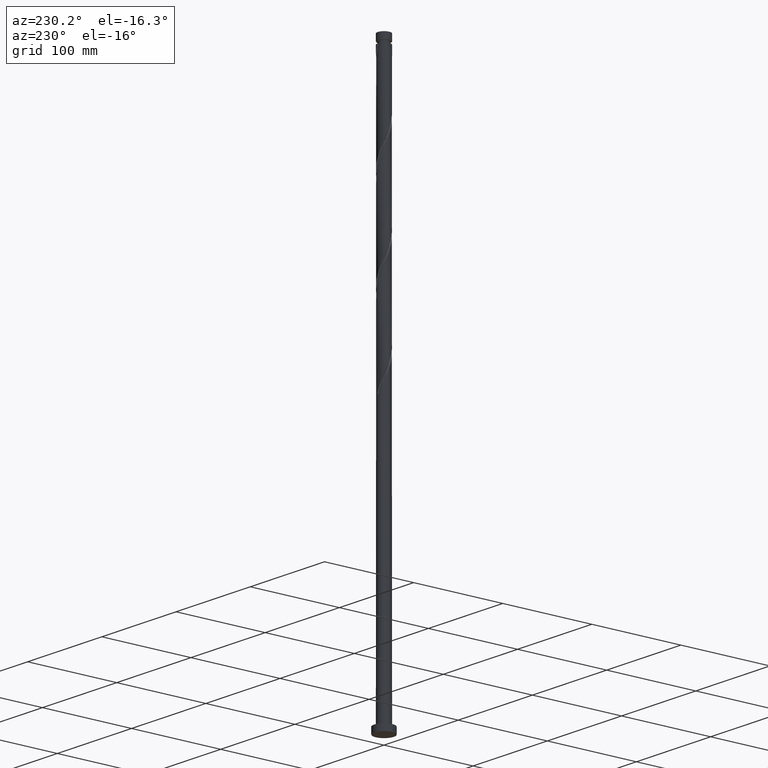
[diagram: clean part render]
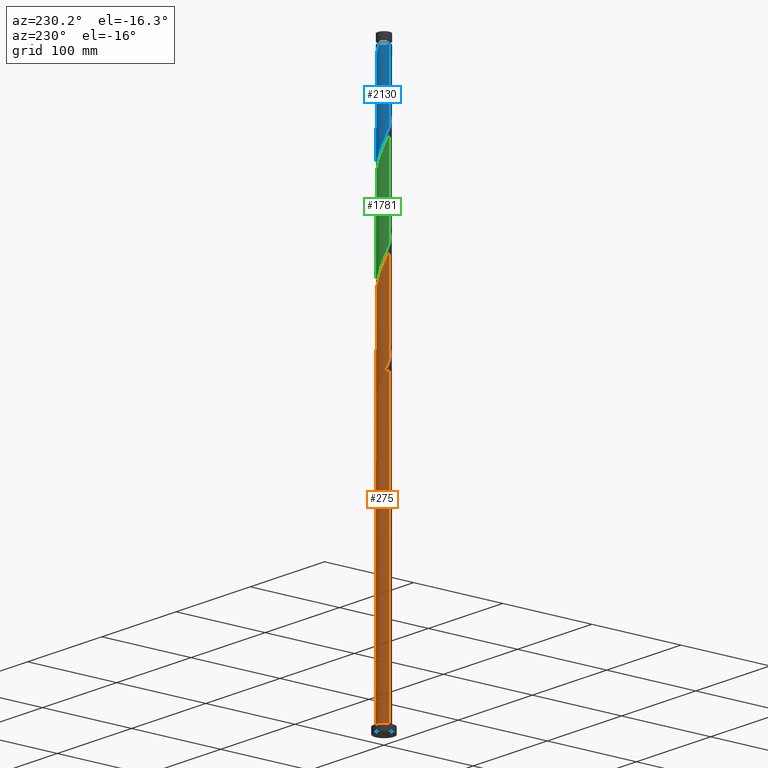
[diagram: same view with three faces highlighted in distinct colors, each labeled with its STEP entity id]
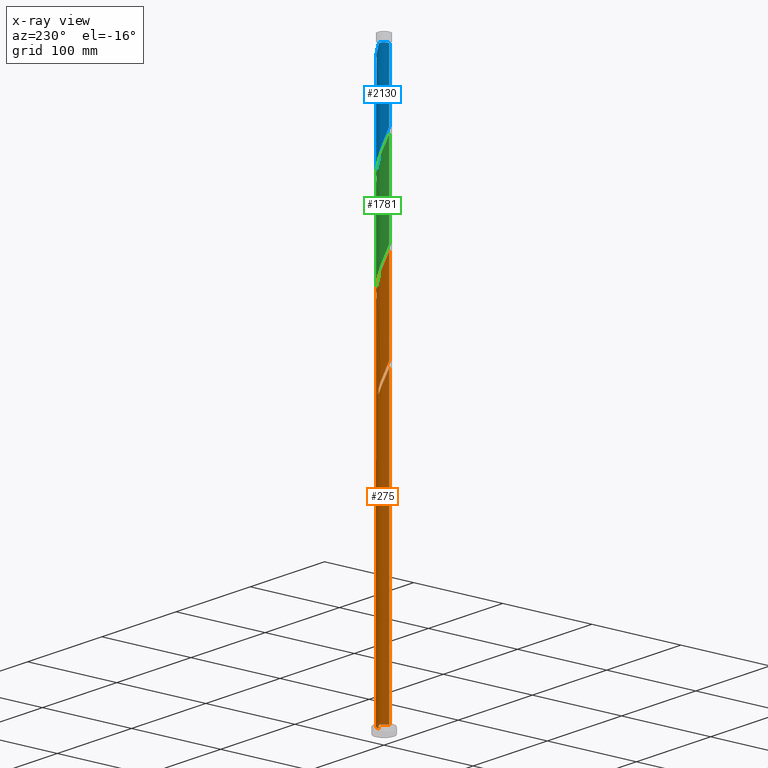
[diagram: x-ray of the same camera — body ghosted, the three highlighted faces saturated]
A machine part, auxiliary view with three faces highlighted in distinct colors.
The next image is the same camera in x-ray (body ghosted, the three faces saturated) — at least one of them is partly hidden behind the body in this view.
Their STEP definitions:

[orange] entity #275 — the highlighted cylindrical surface (edge-blend (fillet) strip) has radius 7 mm, axis along (-0, -0, -1).
#13 = CARTESIAN_POINT ( 'NONE',  ( 0.1087425470572643271, 6.999155310354209902, 307.9404512231919853 ) ) ;
#37 = CARTESIAN_POINT ( 'NONE',  ( 1.392982411949277077, 6.860000000000001208, 304.8522159290742479 ) ) ;
#50 = DIRECTION ( 'NONE',  ( -0.000000000000000000, -0.000000000000000000, -1.000000000000000000 ) ) ;
#99 = EDGE_CURVE ( 'NONE', #888, #887, #1138, .T. ) ;
#116 = DIRECTION ( 'NONE',  ( -1.000000000000000000, 0.000000000000000000, 0.000000000000000000 ) ) ;
#123 = ORIENTED_EDGE ( 'NONE', *, *, #995, .F. ) ;
#127 = CARTESIAN_POINT ( 'NONE',  ( 5.519914488767827088, 4.304711841307286235, 391.3228041643683923 ) ) ;
#142 = CARTESIAN_POINT ( 'NONE',  ( -4.148853266138338824, 5.675187890410485103, 318.7492747526037533 ) ) ;
#146 = CARTESIAN_POINT ( 'NONE',  ( -6.033786423897991469, 3.607514713233052728, 423.7492747526036965 ) ) ;
#153 = CARTESIAN_POINT ( 'NONE',  ( 1.818576125090523465, 6.790693771085500430, 402.1316276937801035 ) ) ;
#156 = LINE ( 'NONE', #1706, #1856 ) ;
#166 = ORIENTED_EDGE ( 'NONE', *, *, #259, .F. ) ;
#192 = LINE ( 'NONE', #1716, #1511 ) ;
#214 = CARTESIAN_POINT ( 'NONE',  ( 0.000000000000000000, 0.000000000000000000, 304.8522159290742479 ) ) ;
#259 = EDGE_CURVE ( 'NONE', #490, #888, #1557, .T. ) ;
#275 = ADVANCED_FACE ( 'NONE', ( #1957 ), #619, .T. ) ;
#286 = CARTESIAN_POINT ( 'NONE',  ( 7.000000000000010658, 6.602924597865742714E-15, 380.2540071543803037 ) ) ;
#298 = CARTESIAN_POINT ( 'NONE',  ( -7.000000000000000888, 0.000000000000000000, 630.0000000000000000 ) ) ;
#307 = CARTESIAN_POINT ( 'NONE',  ( -7.000000000000000888, 0.000000000000000000, 7.000000000000000000 ) ) ;
#317 = CARTESIAN_POINT ( 'NONE',  ( -5.121024193531049207, 4.816207244780715158, 321.8375100467213770 ) ) ;
#333 = CARTESIAN_POINT ( 'NONE',  ( -3.777035245235270455, 5.893556206251933105, 311.0286865173096089 ) ) ;
#340 = CARTESIAN_POINT ( 'NONE',  ( -6.979331644137406698, 0.5375219075929528190, 431.4698629878977272 ) ) ;
#351 = CARTESIAN_POINT ( 'NONE',  ( -2.426987120929417596, 6.565800295077725224, 314.1169218114271189 ) ) ;
#354 = CARTESIAN_POINT ( 'NONE',  ( -5.918804784004598751, 3.793216437833843102, 324.9257453408389438 ) ) ;
#371 = EDGE_CURVE ( 'NONE', #1617, #1381, #1761, .T. ) ;
#392 = CARTESIAN_POINT ( 'NONE',  ( -7.000000000000002665, 6.453537163524918519E-15, 334.4504247037682489 ) ) ;
#438 = AXIS2_PLACEMENT_3D ( 'NONE', #214, #1777, #1620 ) ;
#465 = EDGE_CURVE ( 'NONE', #2178, #887, #1366, .T. ) ;
#471 = CARTESIAN_POINT ( 'NONE',  ( 0.000000000000000000, 0.000000000000000000, 7.000000000000000000 ) ) ;
#475 = VECTOR ( 'NONE', #590, 1000.000000000000000 ) ;
#484 = CARTESIAN_POINT ( 'NONE',  ( 6.216916180193688746, 3.217134316196027299, 388.2345688702508255 ) ) ;
#490 = VERTEX_POINT ( 'NONE', #505 ) ;
#491 = CARTESIAN_POINT ( 'NONE',  ( -6.313857628450200821, 3.022449643527802099, 320.2933923996624799 ) ) ;
#505 = CARTESIAN_POINT ( 'NONE',  ( -1.392982411949274413, 6.860000000000009202, 304.8522159290742479 ) ) ;
#512 = CARTESIAN_POINT ( 'NONE',  ( -5.650978539377444321, 4.131154989527225929, 317.2051571055449131 ) ) ;
#520 = CARTESIAN_POINT ( 'NONE',  ( -6.216916180193678088, 3.217134316196025079, 326.4698629878977840 ) ) ;
#522 = CARTESIAN_POINT ( 'NONE',  ( -6.033786423897991469, 3.607514713233052728, 318.7492747526037533 ) ) ;
#526 = CARTESIAN_POINT ( 'NONE',  ( 0.7573097987289512112, 6.989078829442237684, 306.3963335761331450 ) ) ;
#543 = ORIENTED_EDGE ( 'NONE', *, *, #1022, .F. ) ;
#590 = DIRECTION ( 'NONE',  ( -0.000000000000000000, -0.000000000000000000, -1.000000000000000000 ) ) ;
#619 = CYLINDRICAL_SURFACE ( 'NONE', #1890, 7.000000000000000888 ) ;
#624 = VERTEX_POINT ( 'NONE', #392 ) ;
#633 = ORIENTED_EDGE ( 'NONE', *, *, #99, .F. ) ;
#639 = CARTESIAN_POINT ( 'NONE',  ( -2.028655025169602055, 6.730921170557770949, 411.3963335761331450 ) ) ;
#649 = CARTESIAN_POINT ( 'NONE',  ( -7.000000000000009770, 0.2691583152137695945, 432.1106014023204125 ) ) ;
#663 = CARTESIAN_POINT ( 'NONE',  ( -4.795662153747906942, 5.099178807132586755, 419.1169218114272326 ) ) ;
#668 = CARTESIAN_POINT ( 'NONE',  ( -6.979331644137406698, 0.5375219075929528190, 326.4698629878978977 ) ) ;
#672 = CARTESIAN_POINT ( 'NONE',  ( -0.7573097987289514332, 6.989078829442247454, 408.3080982820154077 ) ) ;
#675 = CARTESIAN_POINT ( 'NONE',  ( -6.889388918561528463, 1.398950086389861402, 331.1022159290743048 ) ) ;
#678 = CARTESIAN_POINT ( 'NONE',  ( -2.629785931500612683, 6.487235617308932056, 307.9404512231919853 ) ) ;
#687 = CARTESIAN_POINT ( 'NONE',  ( -7.000000000000002665, 6.453537163524918519E-15, 334.4504247037682489 ) ) ;
#690 = CARTESIAN_POINT ( 'NONE',  ( -1.392982411949274413, 6.860000000000008313, 304.8522159290742479 ) ) ;
#760 = EDGE_CURVE ( 'NONE', #1617, #2178, #192, .T. ) ;
#803 = CARTESIAN_POINT ( 'NONE',  ( -3.230916837831621979, 6.243550064060094940, 414.4845688702507687 ) ) ;
#814 = CARTESIAN_POINT ( 'NONE',  ( 3.592125691453329939, 6.008047354740226886, 397.4992747526036396 ) ) ;
#838 = CARTESIAN_POINT ( 'NONE',  ( -3.777035245235270455, 5.893556206251933105, 416.0286865173096089 ) ) ;
#844 = CARTESIAN_POINT ( 'NONE',  ( -4.795662153747906942, 5.099178807132586755, 314.1169218114272326 ) ) ;
#887 = VERTEX_POINT ( 'NONE', #307 ) ;
#888 = VERTEX_POINT ( 'NONE', #1379 ) ;
#968 = CARTESIAN_POINT ( 'NONE',  ( 1.179200414852474399, 6.899962781175843496, 403.6757453408388869 ) ) ;
#975 = CARTESIAN_POINT ( 'NONE',  ( 7.000000000000000888, 8.572527594031474176E-16, 7.000000000000000000 ) ) ;
#979 = CARTESIAN_POINT ( 'NONE',  ( -6.929522904244873160, 1.184252226071107028, 429.9257453408389438 ) ) ;
#992 = CARTESIAN_POINT ( 'NONE',  ( 7.000000000000007994, 0.3781398857548617931, 381.1579263863928873 ) ) ;
#995 = EDGE_CURVE ( 'NONE', #1381, #624, #156, .T. ) ;
#998 = CARTESIAN_POINT ( 'NONE',  ( -6.593928833002411061, 2.437384573822552802, 321.8375100467213201 ) ) ;
#1008 = CARTESIAN_POINT ( 'NONE',  ( -4.323153652638920263, 5.543562348443774823, 312.5728041643683923 ) ) ;
#1022 = EDGE_CURVE ( 'NONE', #624, #1898, #1415, .T. ) ;
#1030 = CARTESIAN_POINT ( 'NONE',  ( -5.519914488767820870, 4.304711841307279130, 323.3816276937801604 ) ) ;
#1138 = LINE ( 'NONE', #298, #475 ) ;
#1143 = DIRECTION ( 'NONE',  ( 0.000000000000000000, 0.000000000000000000, 1.000000000000000000 ) ) ;
#1149 = CARTESIAN_POINT ( 'NONE',  ( -1.179200414852472401, 6.899962781175837279, 311.0286865173096658 ) ) ;
#1162 = CARTESIAN_POINT ( 'NONE',  ( 5.918804784004604969, 3.793216437833845323, 389.7786865173094952 ) ) ;
#1173 = CARTESIAN_POINT ( 'NONE',  ( 3.035398116768321497, 6.340906819069966893, 399.0433923996624799 ) ) ;
#1181 = CARTESIAN_POINT ( 'NONE',  ( 4.148853266138341489, 5.675187890410493097, 395.9551571055448562 ) ) ;
#1188 = CARTESIAN_POINT ( 'NONE',  ( -6.761725868623641666, 1.810818399946829027, 323.3816276937801604 ) ) ;
#1192 = CARTESIAN_POINT ( 'NONE',  ( 6.959264651295739235, 0.7540792486375309522, 382.0580982820155782 ) ) ;
#1277 = ORIENTED_EDGE ( 'NONE', *, *, #465, .T. ) ;
#1317 = CARTESIAN_POINT ( 'NONE',  ( 6.889388918561536457, 1.398950086389860070, 383.6022159290743048 ) ) ;
#1340 = CARTESIAN_POINT ( 'NONE',  ( -6.593928833002411061, 2.437384573822552802, 426.8375100467213201 ) ) ;
#1357 = CARTESIAN_POINT ( 'NONE',  ( -6.702208247472144720, 2.020001140474033896, 329.5580982820154645 ) ) ;
#1359 = ORIENTED_EDGE ( 'NONE', *, *, #1585, .T. ) ;
#1360 = CARTESIAN_POINT ( 'NONE',  ( -7.000000000000011546, 0.2691583152137672075, 327.1106014023205830 ) ) ;
#1366 = CIRCLE ( 'NONE', #1961, 7.000000000000000888 ) ;
#1379 = CARTESIAN_POINT ( 'NONE',  ( -7.000000000000008882, 1.347474657754501805E-14, 327.7540071543801901 ) ) ;
#1381 = VERTEX_POINT ( 'NONE', #1597 ) ;
#1415 =( BOUNDED_CURVE ( )  B_SPLINE_CURVE ( 2, ( #687, #2176, #1526, #675, #1357, #2023, #520, #354, #1030, #317, #2043, #142, #1506, #2049, #351, #1551, #1149, #1891, #13, #526, #37 ),
 .UNSPECIFIED., .F., .T. ) 
 B_SPLINE_CURVE_WITH_KNOTS ( ( 3, 2, 2, 2, 2, 2, 2, 2, 2, 2, 3 ),
 ( 0.9295293573162906053, 0.9338235294117647189, 0.9411764705882352811, 0.9485294117647058432, 0.9558823529411765163, 0.9632352941176470784, 0.9705882352941176405, 0.9779411764705882026, 0.9852941176470588758, 0.9926470588235294379, 1.000000000000000000 ),
 .UNSPECIFIED. ) 
 CURVE ( )  GEOMETRIC_REPRESENTATION_ITEM ( )  RATIONAL_B_SPLINE_CURVE ( ( 0.9072066346053073715, 0.9068261157890744606, 0.9090909090909458090, 0.9052128875409768405, 0.9090909090909458090, 0.9052128875409768405, 0.9090909090909458090, 0.9052128875409768405, 0.9090909090909458090, 0.9052128875409768405, 0.9090909090909458090, 0.9052128875409768405, 0.9090909090909458090, 0.9052128875409768405, 0.9090909090909458090, 0.9052128875409768405, 0.9090909090909458090, 0.9052128875409768405, 0.9090909090909458090, 0.9052128875409768405, 0.9090909090909458090 ) ) 
 REPRESENTATION_ITEM ( '' )  );
#1502 = CARTESIAN_POINT ( 'NONE',  ( -4.323153652638920263, 5.543562348443774823, 417.5728041643683923 ) ) ;
#1506 = CARTESIAN_POINT ( 'NONE',  ( -3.592125691453326830, 6.008047354740224222, 317.2051571055449131 ) ) ;
#1511 = VECTOR ( 'NONE', #50, 1000.000000000000000 ) ;
#1515 = CARTESIAN_POINT ( 'NONE',  ( 7.000000000000010658, 6.602924597865742714E-15, 380.2540071543803037 ) ) ;
#1523 = CARTESIAN_POINT ( 'NONE',  ( -6.313857628450200821, 3.022449643527802099, 425.2933923996625367 ) ) ;
#1526 = CARTESIAN_POINT ( 'NONE',  ( -6.959264651295729465, 0.7540792486375311743, 332.6463335761331450 ) ) ;
#1551 = CARTESIAN_POINT ( 'NONE',  ( -1.818576125090521689, 6.790693771085493324, 312.5728041643684492 ) ) ;
#1557 =( BOUNDED_CURVE ( )  B_SPLINE_CURVE ( 2, ( #690, #1844, #678, #2168, #333, #1008, #844, #2004, #512, #522, #491, #998, #1188, #1988, #668, #1360, #2026 ),
 .UNSPECIFIED., .F., .T. ) 
 B_SPLINE_CURVE_WITH_KNOTS ( ( 3, 2, 2, 2, 2, 2, 2, 2, 3 ),
 ( 0.000000000000000000, 0.007352941176470562112, 0.01470588235294112422, 0.02205882352941179389, 0.02941176470588235947, 0.03676470588235292158, 0.04411764705882347676, 0.05147058823529415683, 0.05452935731629057758 ),
 .UNSPECIFIED. ) 
 CURVE ( )  GEOMETRIC_REPRESENTATION_ITEM ( )  RATIONAL_B_SPLINE_CURVE ( ( 0.9090909090909501389, 0.9052128875409812814, 0.9090909090909501389, 0.9052128875409812814, 0.9090909090909501389, 0.9052128875409812814, 0.9090909090909501389, 0.9052128875409812814, 0.9090909090909501389, 0.9052128875409812814, 0.9090909090909501389, 0.9052128875409812814, 0.9090909090909501389, 0.9052128875409812814, 0.9090909090909501389, 0.9074776808428524077, 0.9072066346053117014 ) ) 
 REPRESENTATION_ITEM ( '' )  );
#1569 = ORIENTED_EDGE ( 'NONE', *, *, #760, .T. ) ;
#1585 = EDGE_CURVE ( 'NONE', #490, #1898, #2030, .T. ) ;
#1597 = CARTESIAN_POINT ( 'NONE',  ( -7.000000000000010658, -6.095007321106839004E-15, 432.7540071543803037 ) ) ;
#1611 = DIRECTION ( 'NONE',  ( -0.000000000000000000, -0.000000000000000000, -1.000000000000000000 ) ) ;
#1617 = VERTEX_POINT ( 'NONE', #286 ) ;
#1620 = DIRECTION ( 'NONE',  ( -1.000000000000000000, 0.000000000000000000, 0.000000000000000000 ) ) ;
#1654 = CARTESIAN_POINT ( 'NONE',  ( 1.392982411949277077, 6.860000000000001208, 304.8522159290742479 ) ) ;
#1657 = CARTESIAN_POINT ( 'NONE',  ( -2.629785931500612683, 6.487235617308932056, 412.9404512231919284 ) ) ;
#1666 = DIRECTION ( 'NONE',  ( 1.000000000000000000, 0.000000000000000000, 0.000000000000000000 ) ) ;
#1676 = CARTESIAN_POINT ( 'NONE',  ( -5.268170654856898061, 4.654795265821401351, 420.6610394584860728 ) ) ;
#1685 = CARTESIAN_POINT ( 'NONE',  ( 4.634938729834698457, 5.245697567595604127, 394.4110394584861297 ) ) ;
#1694 = CARTESIAN_POINT ( 'NONE',  ( 5.121024193531053648, 4.816207244780720487, 392.8669218114273463 ) ) ;
#1697 = DIRECTION ( 'NONE',  ( -0.000000000000000000, -0.000000000000000000, -1.000000000000000000 ) ) ;
#1706 = CARTESIAN_POINT ( 'NONE',  ( -7.000000000000000888, 0.000000000000000000, 630.0000000000000000 ) ) ;
#1716 = CARTESIAN_POINT ( 'NONE',  ( 7.000000000000000888, 8.572527594031474176E-16, 630.0000000000000000 ) ) ;
#1760 = EDGE_LOOP ( 'NONE', ( #2139, #1569, #1277, #633, #166, #1359, #543, #123 ) ) ;
#1761 =( BOUNDED_CURVE ( )  B_SPLINE_CURVE ( 2, ( #1515, #992, #1192, #1317, #2010, #1870, #484, #1162, #127, #1694, #1685, #1181, #814, #1173, #1981, #153, #968, #1995, #2172, #672, #1860, #639, #1657, #803, #838, #1502, #663, #1676, #2159, #146, #1523, #1340, #1838, #979, #340, #649, #2151 ),
 .UNSPECIFIED., .F., .T. ) 
 B_SPLINE_CURVE_WITH_KNOTS ( ( 3, 2, 2, 2, 2, 2, 2, 2, 2, 2, 2, 2, 2, 2, 2, 2, 2, 2, 3 ),
 ( 0.1795293573162905498, 0.1838235294117647189, 0.1911764705882352811, 0.1985294117647058432, 0.2058823529411765163, 0.2132352941176470784, 0.2205882352941176405, 0.2279411764705882026, 0.2352941176470588758, 0.2426470588235294379, 0.2500000000000000000, 0.2573529411764705621, 0.2647058823529411242, 0.2720588235294117974, 0.2794117647058823595, 0.2867647058823529216, 0.2941176470588234837, 0.3014705882352941568, 0.3045293573162905498 ),
 .UNSPECIFIED. ) 
 CURVE ( )  GEOMETRIC_REPRESENTATION_ITEM ( )  RATIONAL_B_SPLINE_CURVE ( ( 0.9072066346053118124, 0.9068261157890789015, 0.9090909090909501389, 0.9052128875409812814, 0.9090909090909501389, 0.9052128875409812814, 0.9090909090909501389, 0.9052128875409812814, 0.9090909090909501389, 0.9052128875409812814, 0.9090909090909501389, 0.9052128875409812814, 0.9090909090909501389, 0.9052128875409812814, 0.9090909090909501389, 0.9052128875409812814, 0.9090909090909501389, 0.9052128875409812814, 0.9090909090909501389, 0.9052128875409812814, 0.9090909090909501389, 0.9052128875409812814, 0.9090909090909501389, 0.9052128875409812814, 0.9090909090909501389, 0.9052128875409812814, 0.9090909090909501389, 0.9052128875409812814, 0.9090909090909501389, 0.9052128875409812814, 0.9090909090909501389, 0.9052128875409812814, 0.9090909090909501389, 0.9052128875409812814, 0.9090909090909501389, 0.9074776808428525188, 0.9072066346053118124 ) ) 
 REPRESENTATION_ITEM ( '' )  );
#1777 = DIRECTION ( 'NONE',  ( 0.000000000000000000, -0.000000000000000000, -1.000000000000000000 ) ) ;
#1838 = CARTESIAN_POINT ( 'NONE',  ( -6.761725868623641666, 1.810818399946829027, 428.3816276937801035 ) ) ;
#1844 = CARTESIAN_POINT ( 'NONE',  ( -2.028655025169602055, 6.730921170557770949, 306.3963335761332019 ) ) ;
#1856 = VECTOR ( 'NONE', #1697, 1000.000000000000000 ) ;
#1860 = CARTESIAN_POINT ( 'NONE',  ( -1.392982411949274413, 6.860000000000008313, 409.8522159290743616 ) ) ;
#1870 = CARTESIAN_POINT ( 'NONE',  ( 6.515027576382769858, 2.641052194558211497, 386.6904512231919853 ) ) ;
#1890 = AXIS2_PLACEMENT_3D ( 'NONE', #1965, #1611, #116 ) ;
#1891 = CARTESIAN_POINT ( 'NONE',  ( -0.5398247046144222239, 7.009231791266180345, 309.4845688702507118 ) ) ;
#1898 = VERTEX_POINT ( 'NONE', #1654 ) ;
#1957 = FACE_OUTER_BOUND ( 'NONE', #1760, .T. ) ;
#1961 = AXIS2_PLACEMENT_3D ( 'NONE', #471, #1143, #1666 ) ;
#1965 = CARTESIAN_POINT ( 'NONE',  ( 0.000000000000000000, 0.000000000000000000, 630.0000000000000000 ) ) ;
#1981 = CARTESIAN_POINT ( 'NONE',  ( 2.426987120929425146, 6.565800295077732329, 400.5875100467213201 ) ) ;
#1988 = CARTESIAN_POINT ( 'NONE',  ( -6.929522904244873160, 1.184252226071107028, 324.9257453408391143 ) ) ;
#1995 = CARTESIAN_POINT ( 'NONE',  ( 0.5398247046144261097, 7.009231791266186562, 405.2198629878978409 ) ) ;
#2004 = CARTESIAN_POINT ( 'NONE',  ( -5.268170654856898061, 4.654795265821401351, 315.6610394584861297 ) ) ;
#2010 = CARTESIAN_POINT ( 'NONE',  ( 6.702208247472152713, 2.020001140474032564, 385.1463335761332019 ) ) ;
#2023 = CARTESIAN_POINT ( 'NONE',  ( -6.515027576382762753, 2.641052194558207944, 328.0139806349567380 ) ) ;
#2026 = CARTESIAN_POINT ( 'NONE',  ( -7.000000000000008882, 1.347474657754501805E-14, 327.7540071543801901 ) ) ;
#2030 = CIRCLE ( 'NONE', #438, 7.000000000000000888 ) ;
#2043 = CARTESIAN_POINT ( 'NONE',  ( -4.634938729834694016, 5.245697567595599686, 320.2933923996626504 ) ) ;
#2049 = CARTESIAN_POINT ( 'NONE',  ( -3.035398116768317056, 6.340906819069961564, 315.6610394584860160 ) ) ;
#2139 = ORIENTED_EDGE ( 'NONE', *, *, #371, .F. ) ;
#2151 = CARTESIAN_POINT ( 'NONE',  ( -7.000000000000010658, -6.095007321106839004E-15, 432.7540071543803037 ) ) ;
#2159 = CARTESIAN_POINT ( 'NONE',  ( -5.650978539377444321, 4.131154989527225929, 422.2051571055449699 ) ) ;
#2168 = CARTESIAN_POINT ( 'NONE',  ( -3.230916837831621979, 6.243550064060094940, 309.4845688702508255 ) ) ;
#2172 = CARTESIAN_POINT ( 'NONE',  ( -0.1087425470572654096, 6.999155310354216120, 406.7639806349566811 ) ) ;
#2176 = CARTESIAN_POINT ( 'NONE',  ( -7.000000000000000888, 0.3781398857548654568, 333.5465054717556654 ) ) ;
#2178 = VERTEX_POINT ( 'NONE', #975 ) ;

[blue] entity #2130 — the highlighted cylindrical surface (edge-blend (fillet) strip) has radius 7 mm, axis along (-0, -0, -1).
#5 = CARTESIAN_POINT ( 'NONE',  ( -7.000000000000002665, -1.711979997546194062E-14, 544.4504247037683626 ) ) ;
#32 =( BOUNDED_CURVE ( )  B_SPLINE_CURVE ( 2, ( #1346, #1371, #2017, #1866, #1021, #167, #176, #1080, #1378, #882, #1635, #1643, #1123, #1273, #1623, #585, #756, #1947, #2133, #779, #424 ),
 .UNSPECIFIED., .F., .T. ) 
 B_SPLINE_CURVE_WITH_KNOTS ( ( 3, 2, 2, 2, 2, 2, 2, 2, 2, 2, 3 ),
 ( 0.6795293573162902723, 0.6838235294117647189, 0.6911764705882352811, 0.6985294117647058432, 0.7058823529411764053, 0.7132352941176470784, 0.7205882352941176405, 0.7279411764705883137, 0.7352941176470588758, 0.7426470588235294379, 0.7500000000000000000 ),
 .UNSPECIFIED. ) 
 CURVE ( )  GEOMETRIC_REPRESENTATION_ITEM ( )  RATIONAL_B_SPLINE_CURVE ( ( 0.9072066346053117014, 0.9068261157890786794, 0.9090909090909501389, 0.9052128875409812814, 0.9090909090909501389, 0.9052128875409812814, 0.9090909090909501389, 0.9052128875409812814, 0.9090909090909501389, 0.9052128875409812814, 0.9090909090909501389, 0.9052128875409812814, 0.9090909090909501389, 0.9052128875409812814, 0.9090909090909501389, 0.9052128875409812814, 0.9090909090909501389, 0.9052128875409812814, 0.9090909090909501389, 0.9052128875409812814, 0.9090909090909501389 ) ) 
 REPRESENTATION_ITEM ( '' )  );
#72 = EDGE_CURVE ( 'NONE', #1234, #974, #1798, .T. ) ;
#91 = CARTESIAN_POINT ( 'NONE',  ( 0.7573097987289512112, 6.989078829442237684, 516.3963335761329745 ) ) ;
#112 = ORIENTED_EDGE ( 'NONE', *, *, #561, .T. ) ;
#167 = CARTESIAN_POINT ( 'NONE',  ( 6.515027576382769858, 2.641052194558211497, 596.6904512231920990 ) ) ;
#176 = CARTESIAN_POINT ( 'NONE',  ( 6.216916180193688746, 3.217134316196027299, 598.2345688702508824 ) ) ;
#181 = CARTESIAN_POINT ( 'NONE',  ( -0.5398247046144222239, 7.009231791266180345, 519.4845688702508824 ) ) ;
#190 = CARTESIAN_POINT ( 'NONE',  ( -6.889388918561528463, 1.398950086389861402, 541.1022159290743048 ) ) ;
#221 = ORIENTED_EDGE ( 'NONE', *, *, #1555, .T. ) ;
#251 = CARTESIAN_POINT ( 'NONE',  ( 4.795662153747906054, 5.099178807132579649, 505.5875100467214338 ) ) ;
#254 = AXIS2_PLACEMENT_3D ( 'NONE', #1210, #1911, #695 ) ;
#261 = EDGE_CURVE ( 'NONE', #1353, #416, #32, .T. ) ;
#336 = VECTOR ( 'NONE', #421, 1000.000000000000000 ) ;
#362 = CARTESIAN_POINT ( 'NONE',  ( -1.179200414852472401, 6.899962781175837279, 521.0286865173095521 ) ) ;
#372 = CARTESIAN_POINT ( 'NONE',  ( -7.000000000000004441, 0.3781398857548243231, 543.5465054717556086 ) ) ;
#396 = ORIENTED_EDGE ( 'NONE', *, *, #261, .F. ) ;
#409 = CARTESIAN_POINT ( 'NONE',  ( 6.033786423897987028, 3.607514713233050063, 500.9551571055449699 ) ) ;
#416 = VERTEX_POINT ( 'NONE', #1016 ) ;
#421 = DIRECTION ( 'NONE',  ( -0.000000000000000000, -0.000000000000000000, -1.000000000000000000 ) ) ;
#424 = CARTESIAN_POINT ( 'NONE',  ( -1.392982411949274191, 6.860000000000008313, 619.8522159290741911 ) ) ;
#468 = DIRECTION ( 'NONE',  ( -0.000000000000000000, -0.000000000000000000, -1.000000000000000000 ) ) ;
#561 = EDGE_CURVE ( 'NONE', #1234, #416, #1652, .T. ) ;
#569 = CARTESIAN_POINT ( 'NONE',  ( 1.392982411949277299, 6.860000000000002096, 514.8522159290744185 ) ) ;
#582 = CARTESIAN_POINT ( 'NONE',  ( 6.313857628450196380, 3.022449643527796326, 499.4110394584860160 ) ) ;
#585 = CARTESIAN_POINT ( 'NONE',  ( 1.818576125090523465, 6.790693771085500430, 612.1316276937802741 ) ) ;
#606 = CARTESIAN_POINT ( 'NONE',  ( 7.000000000000000888, -6.752312032206627651E-15, 491.9504247037683626 ) ) ;
#625 = DIRECTION ( 'NONE',  ( -0.000000000000000000, -0.000000000000000000, -1.000000000000000000 ) ) ;
#634 = FACE_OUTER_BOUND ( 'NONE', #866, .T. ) ;
#642 = CARTESIAN_POINT ( 'NONE',  ( -4.148853266138338824, 5.675187890410485103, 528.7492747526036965 ) ) ;
#695 = DIRECTION ( 'NONE',  ( -1.000000000000000000, 0.000000000000000000, 0.000000000000000000 ) ) ;
#696 = CARTESIAN_POINT ( 'NONE',  ( -6.515027576382762753, 2.641052194558207944, 538.0139806349567380 ) ) ;
#733 = CARTESIAN_POINT ( 'NONE',  ( 6.593928833002403067, 2.437384573822548806, 497.8669218114272894 ) ) ;
#756 = CARTESIAN_POINT ( 'NONE',  ( 1.179200414852474399, 6.899962781175843496, 613.6757453408390575 ) ) ;
#763 = CARTESIAN_POINT ( 'NONE',  ( 6.929522904244866943, 1.184252226071101921, 494.7786865173095521 ) ) ;
#779 = CARTESIAN_POINT ( 'NONE',  ( -0.7573097987289514332, 6.989078829442247454, 618.3080982820155214 ) ) ;
#785 = CARTESIAN_POINT ( 'NONE',  ( -7.000000000000000888, 0.000000000000000000, 630.0000000000000000 ) ) ;
#800 = DIRECTION ( 'NONE',  ( -1.000000000000000000, 0.000000000000000000, 0.000000000000000000 ) ) ;
#807 = CARTESIAN_POINT ( 'NONE',  ( -6.959264651295729465, 0.7540792486375311743, 542.6463335761332019 ) ) ;
#809 = VERTEX_POINT ( 'NONE', #1622 ) ;
#819 = CARTESIAN_POINT ( 'NONE',  ( -3.035398116768317056, 6.340906819069961564, 525.6610394584861297 ) ) ;
#854 = ORIENTED_EDGE ( 'NONE', *, *, #72, .F. ) ;
#866 = EDGE_LOOP ( 'NONE', ( #396, #221, #1152, #854, #112 ) ) ;
#882 = CARTESIAN_POINT ( 'NONE',  ( 5.121024193531053648, 4.816207244780720487, 602.8669218114271189 ) ) ;
#921 = CARTESIAN_POINT ( 'NONE',  ( 2.629785931500608687, 6.487235617308924951, 511.7639806349567380 ) ) ;
#974 = VERTEX_POINT ( 'NONE', #5 ) ;
#984 = CARTESIAN_POINT ( 'NONE',  ( -3.592125691453326830, 6.008047354740224222, 527.2051571055449131 ) ) ;
#1016 = CARTESIAN_POINT ( 'NONE',  ( -1.392982411949274191, 6.860000000000008313, 619.8522159290741911 ) ) ;
#1021 = CARTESIAN_POINT ( 'NONE',  ( 6.702208247472152713, 2.020001140474032564, 595.1463335761330882 ) ) ;
#1027 = CARTESIAN_POINT ( 'NONE',  ( -7.000000000000001776, -1.711979997546194062E-14, 544.4504247037683626 ) ) ;
#1046 = CARTESIAN_POINT ( 'NONE',  ( -6.702208247472144720, 2.020001140474033896, 539.5580982820155214 ) ) ;
#1073 = AXIS2_PLACEMENT_3D ( 'NONE', #1463, #468, #800 ) ;
#1080 = CARTESIAN_POINT ( 'NONE',  ( 5.918804784004604969, 3.793216437833845323, 599.7786865173094384 ) ) ;
#1088 = CARTESIAN_POINT ( 'NONE',  ( 3.230916837831621091, 6.243550064060083393, 510.2198629878978977 ) ) ;
#1123 = CARTESIAN_POINT ( 'NONE',  ( 3.592125691453329939, 6.008047354740226886, 607.4992747526036965 ) ) ;
#1129 = CYLINDRICAL_SURFACE ( 'NONE', #1073, 7.000000000000000888 ) ;
#1152 = ORIENTED_EDGE ( 'NONE', *, *, #1309, .F. ) ;
#1166 = CARTESIAN_POINT ( 'NONE',  ( -6.216916180193678088, 3.217134316196025079, 536.4698629878977272 ) ) ;
#1202 = CARTESIAN_POINT ( 'NONE',  ( -5.519914488767820870, 4.304711841307279130, 533.3816276937802741 ) ) ;
#1210 = CARTESIAN_POINT ( 'NONE',  ( 0.000000000000000000, 0.000000000000000000, 619.8522159290741911 ) ) ;
#1214 = VECTOR ( 'NONE', #625, 1000.000000000000000 ) ;
#1234 = VERTEX_POINT ( 'NONE', #1563 ) ;
#1259 = CARTESIAN_POINT ( 'NONE',  ( 4.323153652638914046, 5.543562348443768606, 507.1316276937801604 ) ) ;
#1270 = CARTESIAN_POINT ( 'NONE',  ( 6.761725868623634561, 1.810818399946828139, 496.3228041643683355 ) ) ;
#1273 = CARTESIAN_POINT ( 'NONE',  ( 3.035398116768321497, 6.340906819069966893, 609.0433923996627072 ) ) ;
#1309 = EDGE_CURVE ( 'NONE', #974, #809, #1642, .T. ) ;
#1346 = CARTESIAN_POINT ( 'NONE',  ( 7.000000000000009770, 2.509708896926345588E-15, 590.2540071543801332 ) ) ;
#1353 = VERTEX_POINT ( 'NONE', #1420 ) ;
#1371 = CARTESIAN_POINT ( 'NONE',  ( 7.000000000000013323, 0.3781398857548374237, 591.1579263863930009 ) ) ;
#1378 = CARTESIAN_POINT ( 'NONE',  ( 5.519914488767827088, 4.304711841307286235, 601.3228041643683355 ) ) ;
#1408 = CARTESIAN_POINT ( 'NONE',  ( 5.268170654856894508, 4.654795265821396022, 504.0433923996624799 ) ) ;
#1420 = CARTESIAN_POINT ( 'NONE',  ( 7.000000000000009770, 2.509708896926345194E-15, 590.2540071543801332 ) ) ;
#1463 = CARTESIAN_POINT ( 'NONE',  ( 0.000000000000000000, 0.000000000000000000, 630.0000000000000000 ) ) ;
#1494 = CARTESIAN_POINT ( 'NONE',  ( -5.121024193531049207, 4.816207244780715158, 531.8375100467213770 ) ) ;
#1505 = CARTESIAN_POINT ( 'NONE',  ( -2.426987120929417596, 6.565800295077725224, 524.1169218114272326 ) ) ;
#1555 = EDGE_CURVE ( 'NONE', #1353, #809, #1902, .T. ) ;
#1563 = CARTESIAN_POINT ( 'NONE',  ( -6.999999999999937828, 0.000000000000000000, 619.8522159290741911 ) ) ;
#1622 = CARTESIAN_POINT ( 'NONE',  ( 7.000000000000000888, -6.752312032206627651E-15, 491.9504247037683626 ) ) ;
#1623 = CARTESIAN_POINT ( 'NONE',  ( 2.426987120929425146, 6.565800295077732329, 610.5875100467211496 ) ) ;
#1635 = CARTESIAN_POINT ( 'NONE',  ( 4.634938729834698457, 5.245697567595604127, 604.4110394584861297 ) ) ;
#1642 =( BOUNDED_CURVE ( )  B_SPLINE_CURVE ( 2, ( #1027, #372, #807, #190, #1046, #696, #1166, #1714, #1202, #1494, #2000, #642, #984, #819, #1505, #2164, #362, #181, #1745, #91, #569, #1754, #921, #1088, #1735, #1259, #251, #1408, #1933, #409, #582, #733, #1270, #763, #2083, #2073, #606 ),
 .UNSPECIFIED., .F., .T. ) 
 B_SPLINE_CURVE_WITH_KNOTS ( ( 3, 2, 2, 2, 2, 2, 2, 2, 2, 2, 2, 2, 2, 2, 2, 2, 2, 2, 3 ),
 ( 0.4295293573162901057, 0.4338235294117647189, 0.4411764705882352811, 0.4485294117647058987, 0.4558823529411764608, 0.4632352941176470784, 0.4705882352941176405, 0.4779411764705882582, 0.4852941176470588203, 0.4926470588235294379, 0.5000000000000000000, 0.5073529411764705621, 0.5147058823529411242, 0.5220588235294117974, 0.5294117647058823595, 0.5367647058823529216, 0.5441176470588234837, 0.5514705882352941568, 0.5545293573162903833 ),
 .UNSPECIFIED. ) 
 CURVE ( )  GEOMETRIC_REPRESENTATION_ITEM ( )  RATIONAL_B_SPLINE_CURVE ( ( 0.9072066346053075936, 0.9068261157890743496, 0.9090909090909458090, 0.9052128875409768405, 0.9090909090909458090, 0.9052128875409768405, 0.9090909090909458090, 0.9052128875409768405, 0.9090909090909458090, 0.9052128875409768405, 0.9090909090909458090, 0.9052128875409768405, 0.9090909090909458090, 0.9052128875409768405, 0.9090909090909458090, 0.9052128875409768405, 0.9090909090909458090, 0.9052128875409768405, 0.9090909090909458090, 0.9052128875409768405, 0.9090909090909458090, 0.9052128875409768405, 0.9090909090909458090, 0.9052128875409768405, 0.9090909090909458090, 0.9052128875409768405, 0.9090909090909458090, 0.9052128875409768405, 0.9090909090909458090, 0.9052128875409768405, 0.9090909090909458090, 0.9052128875409768405, 0.9090909090909458090, 0.9052128875409768405, 0.9090909090909458090, 0.9074776808428481889, 0.9072066346053073715 ) ) 
 REPRESENTATION_ITEM ( '' )  );
#1643 = CARTESIAN_POINT ( 'NONE',  ( 4.148853266138341489, 5.675187890410493097, 605.9551571055450268 ) ) ;
#1652 = CIRCLE ( 'NONE', #254, 6.999999999999937828 ) ;
#1714 = CARTESIAN_POINT ( 'NONE',  ( -5.918804784004598751, 3.793216437833843102, 534.9257453408389438 ) ) ;
#1735 = CARTESIAN_POINT ( 'NONE',  ( 3.777035245235267347, 5.893556206251926000, 508.6757453408389438 ) ) ;
#1745 = CARTESIAN_POINT ( 'NONE',  ( 0.1087425470572643271, 6.999155310354209902, 517.9404512231918716 ) ) ;
#1754 = CARTESIAN_POINT ( 'NONE',  ( 2.028655025169599835, 6.730921170557766509, 513.3080982820154077 ) ) ;
#1798 = LINE ( 'NONE', #785, #1214 ) ;
#1866 = CARTESIAN_POINT ( 'NONE',  ( 6.889388918561536457, 1.398950086389860070, 593.6022159290741911 ) ) ;
#1902 = LINE ( 'NONE', #1922, #336 ) ;
#1911 = DIRECTION ( 'NONE',  ( -0.000000000000000000, -0.000000000000000000, -1.000000000000000000 ) ) ;
#1922 = CARTESIAN_POINT ( 'NONE',  ( 7.000000000000000888, 8.572527594031474176E-16, 630.0000000000000000 ) ) ;
#1933 = CARTESIAN_POINT ( 'NONE',  ( 5.650978539377438992, 4.131154989527222376, 502.4992747526036965 ) ) ;
#1947 = CARTESIAN_POINT ( 'NONE',  ( 0.5398247046144261097, 7.009231791266186562, 615.2198629878977272 ) ) ;
#2000 = CARTESIAN_POINT ( 'NONE',  ( -4.634938729834694016, 5.245697567595599686, 530.2933923996624799 ) ) ;
#2017 = CARTESIAN_POINT ( 'NONE',  ( 6.959264651295739235, 0.7540792486375309522, 592.0580982820156350 ) ) ;
#2073 = CARTESIAN_POINT ( 'NONE',  ( 7.000000000000001776, 0.2691583152137838608, 492.5938304558280265 ) ) ;
#2083 = CARTESIAN_POINT ( 'NONE',  ( 6.979331644137399593, 0.5375219075929515977, 493.2345688702507687 ) ) ;
#2130 = ADVANCED_FACE ( 'NONE', ( #634 ), #1129, .T. ) ;
#2133 = CARTESIAN_POINT ( 'NONE',  ( -0.1087425470572654096, 6.999155310354216120, 616.7639806349566243 ) ) ;
#2164 = CARTESIAN_POINT ( 'NONE',  ( -1.818576125090521689, 6.790693771085493324, 522.5728041643684492 ) ) ;

[green] entity #1781 — the highlighted cylindrical surface (edge-blend (fillet) strip) has radius 7 mm, axis along (-0, -0, -1).
#16 = CARTESIAN_POINT ( 'NONE',  ( 1.179200414852474399, 6.899962781175843496, 508.6757453408389438 ) ) ;
#103 = DIRECTION ( 'NONE',  ( -0.000000000000000000, -0.000000000000000000, -1.000000000000000000 ) ) ;
#125 = CARTESIAN_POINT ( 'NONE',  ( -2.426987120929417596, 6.565800295077725224, 419.1169218114273463 ) ) ;
#136 = DIRECTION ( 'NONE',  ( -0.000000000000000000, -0.000000000000000000, -1.000000000000000000 ) ) ;
#160 = CARTESIAN_POINT ( 'NONE',  ( 4.323153652638914046, 5.543562348443768606, 402.1316276937802172 ) ) ;
#174 = CARTESIAN_POINT ( 'NONE',  ( 6.515027576382769858, 2.641052194558211497, 491.6904512231919853 ) ) ;
#268 = LINE ( 'NONE', #812, #1928 ) ;
#301 = CARTESIAN_POINT ( 'NONE',  ( -6.889388918561528463, 1.398950086389861402, 436.1022159290743616 ) ) ;
#322 = CARTESIAN_POINT ( 'NONE',  ( 7.000000000000000888, -6.752312032206627651E-15, 386.9504247037682489 ) ) ;
#328 = CARTESIAN_POINT ( 'NONE',  ( 6.702208247472152713, 2.020001140474032564, 490.1463335761331450 ) ) ;
#338 = CARTESIAN_POINT ( 'NONE',  ( 3.230916837831621091, 6.243550064060083393, 405.2198629878977840 ) ) ;
#343 = CARTESIAN_POINT ( 'NONE',  ( -4.323153652638920263, 5.543562348443774823, 522.5728041643683355 ) ) ;
#347 = CARTESIAN_POINT ( 'NONE',  ( 7.000000000000002665, 0.2691583152137546064, 387.5938304558280265 ) ) ;
#357 = CARTESIAN_POINT ( 'NONE',  ( 0.7573097987289512112, 6.989078829442237684, 411.3963335761330882 ) ) ;
#360 = EDGE_CURVE ( 'NONE', #406, #1730, #517, .T. ) ;
#406 = VERTEX_POINT ( 'NONE', #1002 ) ;
#434 = CARTESIAN_POINT ( 'NONE',  ( -5.918804784004598751, 3.793216437833843102, 429.9257453408390006 ) ) ;
#447 = CYLINDRICAL_SURFACE ( 'NONE', #653, 7.000000000000000888 ) ;
#488 = CARTESIAN_POINT ( 'NONE',  ( -6.979331644137406698, 0.5375219075929528190, 536.4698629878977272 ) ) ;
#500 = CARTESIAN_POINT ( 'NONE',  ( 4.148853266138341489, 5.675187890410493097, 500.9551571055449131 ) ) ;
#508 = CARTESIAN_POINT ( 'NONE',  ( -5.268170654856898061, 4.654795265821401351, 525.6610394584861297 ) ) ;
#515 = CARTESIAN_POINT ( 'NONE',  ( 5.650978539377438992, 4.131154989527222376, 397.4992747526036965 ) ) ;
#517 = LINE ( 'NONE', #2031, #1398 ) ;
#529 = CARTESIAN_POINT ( 'NONE',  ( -6.929522904244873160, 1.184252226071107028, 534.9257453408389438 ) ) ;
#565 = ORIENTED_EDGE ( 'NONE', *, *, #360, .T. ) ;
#626 = CARTESIAN_POINT ( 'NONE',  ( -5.121024193531049207, 4.816207244780715158, 426.8375100467214338 ) ) ;
#637 = CARTESIAN_POINT ( 'NONE',  ( -4.148853266138338824, 5.675187890410485103, 423.7492747526036965 ) ) ;
#653 = AXIS2_PLACEMENT_3D ( 'NONE', #1640, #136, #776 ) ;
#655 = CARTESIAN_POINT ( 'NONE',  ( 6.216916180193688746, 3.217134316196027299, 493.2345688702508824 ) ) ;
#661 = CARTESIAN_POINT ( 'NONE',  ( 3.777035245235267347, 5.893556206251926000, 403.6757453408389438 ) ) ;
#666 = CARTESIAN_POINT ( 'NONE',  ( -1.392982411949274413, 6.860000000000008313, 514.8522159290743048 ) ) ;
#670 = CARTESIAN_POINT ( 'NONE',  ( 6.593928833002403067, 2.437384573822548806, 392.8669218114272894 ) ) ;
#683 = DIRECTION ( 'NONE',  ( -0.000000000000000000, -0.000000000000000000, -1.000000000000000000 ) ) ;
#699 = CARTESIAN_POINT ( 'NONE',  ( -6.313857628450200821, 3.022449643527802099, 530.2933923996624799 ) ) ;
#776 = DIRECTION ( 'NONE',  ( -1.000000000000000000, 0.000000000000000000, 0.000000000000000000 ) ) ;
#799 = VERTEX_POINT ( 'NONE', #1935 ) ;
#812 = CARTESIAN_POINT ( 'NONE',  ( -7.000000000000000888, 0.000000000000000000, 630.0000000000000000 ) ) ;
#841 = CARTESIAN_POINT ( 'NONE',  ( 6.889388918561536457, 1.398950086389860070, 488.6022159290743616 ) ) ;
#852 = CARTESIAN_POINT ( 'NONE',  ( 2.426987120929425146, 6.565800295077732329, 505.5875100467214338 ) ) ;
#863 = CARTESIAN_POINT ( 'NONE',  ( 7.000000000000007994, 0.3781398857548715631, 486.1579263863928873 ) ) ;
#867 = CARTESIAN_POINT ( 'NONE',  ( 0.1087425470572643271, 6.999155310354209902, 412.9404512231918716 ) ) ;
#886 = EDGE_CURVE ( 'NONE', #406, #1865, #954, .T. ) ;
#929 = ORIENTED_EDGE ( 'NONE', *, *, #886, .F. ) ;
#946 = CARTESIAN_POINT ( 'NONE',  ( -3.035398116768317056, 6.340906819069961564, 420.6610394584860728 ) ) ;
#954 =( BOUNDED_CURVE ( )  B_SPLINE_CURVE ( 2, ( #1176, #863, #1852, #841, #328, #174, #655, #1841, #1518, #1534, #1369, #500, #1196, #2165, #852, #2035, #16, #1006, #1185, #2186, #666, #1670, #1863, #1546, #1334, #343, #1019, #508, #2013, #1874, #699, #1688, #2001, #529, #488, #1830, #985 ),
 .UNSPECIFIED., .F., .T. ) 
 B_SPLINE_CURVE_WITH_KNOTS ( ( 3, 2, 2, 2, 2, 2, 2, 2, 2, 2, 2, 2, 2, 2, 2, 2, 2, 2, 3 ),
 ( 0.4295293573162906609, 0.4338235294117647189, 0.4411764705882352811, 0.4485294117647058432, 0.4558823529411765163, 0.4632352941176470784, 0.4705882352941176405, 0.4779411764705882026, 0.4852941176470588758, 0.4926470588235294379, 0.5000000000000000000, 0.5073529411764705621, 0.5147058823529411242, 0.5220588235294116863, 0.5294117647058823595, 0.5367647058823529216, 0.5441176470588235947, 0.5514705882352941568, 0.5545293573162898282 ),
 .UNSPECIFIED. ) 
 CURVE ( )  GEOMETRIC_REPRESENTATION_ITEM ( )  RATIONAL_B_SPLINE_CURVE ( ( 0.9072066346053115904, 0.9068261157890789015, 0.9090909090909501389, 0.9052128875409812814, 0.9090909090909501389, 0.9052128875409812814, 0.9090909090909501389, 0.9052128875409812814, 0.9090909090909501389, 0.9052128875409812814, 0.9090909090909501389, 0.9052128875409812814, 0.9090909090909501389, 0.9052128875409812814, 0.9090909090909501389, 0.9052128875409812814, 0.9090909090909501389, 0.9052128875409812814, 0.9090909090909501389, 0.9052128875409812814, 0.9090909090909501389, 0.9052128875409812814, 0.9090909090909501389, 0.9052128875409812814, 0.9090909090909501389, 0.9052128875409812814, 0.9090909090909501389, 0.9052128875409812814, 0.9090909090909501389, 0.9052128875409812814, 0.9090909090909501389, 0.9052128875409812814, 0.9090909090909501389, 0.9052128875409812814, 0.9090909090909501389, 0.9074776808428528518, 0.9072066346053118124 ) ) 
 REPRESENTATION_ITEM ( '' )  );
#956 = CARTESIAN_POINT ( 'NONE',  ( -6.216916180193678088, 3.217134316196025079, 431.4698629878978409 ) ) ;
#977 = CARTESIAN_POINT ( 'NONE',  ( -0.5398247046144222239, 7.009231791266180345, 414.4845688702508824 ) ) ;
#985 = CARTESIAN_POINT ( 'NONE',  ( -7.000000000000009770, -2.001791620167441878E-15, 537.7540071543801332 ) ) ;
#1002 = CARTESIAN_POINT ( 'NONE',  ( 7.000000000000010658, 6.602924597865742714E-15, 485.2540071543802469 ) ) ;
#1006 = CARTESIAN_POINT ( 'NONE',  ( 0.5398247046144261097, 7.009231791266186562, 510.2198629878978977 ) ) ;
#1019 = CARTESIAN_POINT ( 'NONE',  ( -4.795662153747906942, 5.099178807132586755, 524.1169218114273463 ) ) ;
#1033 = CARTESIAN_POINT ( 'NONE',  ( 6.313857628450196380, 3.022449643527796326, 394.4110394584860160 ) ) ;
#1054 = EDGE_LOOP ( 'NONE', ( #929, #565, #1987, #1496 ) ) ;
#1176 = CARTESIAN_POINT ( 'NONE',  ( 7.000000000000010658, 6.602924597865741925E-15, 485.2540071543802469 ) ) ;
#1185 = CARTESIAN_POINT ( 'NONE',  ( -0.1087425470572654096, 6.999155310354216120, 511.7639806349566243 ) ) ;
#1196 = CARTESIAN_POINT ( 'NONE',  ( 3.592125691453329939, 6.008047354740226886, 502.4992747526036965 ) ) ;
#1199 = CARTESIAN_POINT ( 'NONE',  ( 5.268170654856894508, 4.654795265821396022, 399.0433923996625367 ) ) ;
#1282 = CARTESIAN_POINT ( 'NONE',  ( -6.515027576382762753, 2.641052194558207944, 433.0139806349566243 ) ) ;
#1303 = FACE_OUTER_BOUND ( 'NONE', #1054, .T. ) ;
#1326 = CARTESIAN_POINT ( 'NONE',  ( -7.000000000000009770, -2.001791620167441878E-15, 537.7540071543801332 ) ) ;
#1334 = CARTESIAN_POINT ( 'NONE',  ( -3.777035245235270455, 5.893556206251933105, 521.0286865173094384 ) ) ;
#1369 = CARTESIAN_POINT ( 'NONE',  ( 4.634938729834698457, 5.245697567595604127, 499.4110394584860728 ) ) ;
#1383 = CARTESIAN_POINT ( 'NONE',  ( 6.761725868623634561, 1.810818399946828139, 391.3228041643683923 ) ) ;
#1398 = VECTOR ( 'NONE', #683, 1000.000000000000000 ) ;
#1475 = CARTESIAN_POINT ( 'NONE',  ( -7.000000000000004441, -1.308633924825886615E-14, 439.4504247037683626 ) ) ;
#1485 = CARTESIAN_POINT ( 'NONE',  ( -1.179200414852472401, 6.899962781175837279, 416.0286865173095521 ) ) ;
#1496 = ORIENTED_EDGE ( 'NONE', *, *, #1741, .F. ) ;
#1512 = CARTESIAN_POINT ( 'NONE',  ( -6.959264651295729465, 0.7540792486375311743, 437.6463335761331450 ) ) ;
#1518 = CARTESIAN_POINT ( 'NONE',  ( 5.519914488767827088, 4.304711841307286235, 496.3228041643683923 ) ) ;
#1529 = CARTESIAN_POINT ( 'NONE',  ( 6.929522904244866943, 1.184252226071101921, 389.7786865173095521 ) ) ;
#1534 = CARTESIAN_POINT ( 'NONE',  ( 5.121024193531053648, 4.816207244780720487, 497.8669218114273463 ) ) ;
#1546 = CARTESIAN_POINT ( 'NONE',  ( -3.230916837831621979, 6.243550064060094940, 519.4845688702508824 ) ) ;
#1640 = CARTESIAN_POINT ( 'NONE',  ( 0.000000000000000000, 0.000000000000000000, 630.0000000000000000 ) ) ;
#1670 = CARTESIAN_POINT ( 'NONE',  ( -2.028655025169602055, 6.730921170557770949, 516.3963335761329745 ) ) ;
#1674 = CARTESIAN_POINT ( 'NONE',  ( -7.000000000000005329, 0.3781398857548264325, 438.5465054717557223 ) ) ;
#1688 = CARTESIAN_POINT ( 'NONE',  ( -6.593928833002411061, 2.437384573822552802, 531.8375100467212633 ) ) ;
#1700 = CARTESIAN_POINT ( 'NONE',  ( 4.795662153747906054, 5.099178807132579649, 400.5875100467213770 ) ) ;
#1730 = VERTEX_POINT ( 'NONE', #1973 ) ;
#1741 = EDGE_CURVE ( 'NONE', #1865, #799, #268, .T. ) ;
#1781 = ADVANCED_FACE ( 'NONE', ( #1303 ), #447, .T. ) ;
#1813 = CARTESIAN_POINT ( 'NONE',  ( -4.634938729834694016, 5.245697567595599686, 425.2933923996625367 ) ) ;
#1824 = CARTESIAN_POINT ( 'NONE',  ( -1.818576125090521689, 6.790693771085493324, 417.5728041643685060 ) ) ;
#1830 = CARTESIAN_POINT ( 'NONE',  ( -7.000000000000006217, 0.2691583152138331547, 537.1106014023205262 ) ) ;
#1841 = CARTESIAN_POINT ( 'NONE',  ( 5.918804784004604969, 3.793216437833845323, 494.7786865173096089 ) ) ;
#1852 = CARTESIAN_POINT ( 'NONE',  ( 6.959264651295739235, 0.7540792486375309522, 487.0580982820154077 ) ) ;
#1857 = CARTESIAN_POINT ( 'NONE',  ( 6.979331644137399593, 0.5375219075929515977, 388.2345688702509392 ) ) ;
#1863 = CARTESIAN_POINT ( 'NONE',  ( -2.629785931500612683, 6.487235617308932056, 517.9404512231919853 ) ) ;
#1865 = VERTEX_POINT ( 'NONE', #1326 ) ;
#1868 = CARTESIAN_POINT ( 'NONE',  ( 2.028655025169599835, 6.730921170557766509, 408.3080982820153508 ) ) ;
#1874 = CARTESIAN_POINT ( 'NONE',  ( -6.033786423897991469, 3.607514713233052728, 528.7492747526036965 ) ) ;
#1878 = CARTESIAN_POINT ( 'NONE',  ( 2.629785931500608687, 6.487235617308924951, 406.7639806349566243 ) ) ;
#1928 = VECTOR ( 'NONE', #103, 1000.000000000000000 ) ;
#1935 = CARTESIAN_POINT ( 'NONE',  ( -7.000000000000004441, -1.308633924825886615E-14, 439.4504247037684195 ) ) ;
#1969 = EDGE_CURVE ( 'NONE', #799, #1730, #2068, .T. ) ;
#1973 = CARTESIAN_POINT ( 'NONE',  ( 7.000000000000000888, -6.752312032206627651E-15, 386.9504247037682489 ) ) ;
#1979 = CARTESIAN_POINT ( 'NONE',  ( -3.592125691453326830, 6.008047354740224222, 422.2051571055448562 ) ) ;
#1987 = ORIENTED_EDGE ( 'NONE', *, *, #1969, .F. ) ;
#2001 = CARTESIAN_POINT ( 'NONE',  ( -6.761725868623641666, 1.810818399946829027, 533.3816276937801604 ) ) ;
#2008 = CARTESIAN_POINT ( 'NONE',  ( 1.392982411949277299, 6.860000000000002096, 409.8522159290744185 ) ) ;
#2013 = CARTESIAN_POINT ( 'NONE',  ( -5.650978539377444321, 4.131154989527225929, 527.2051571055449131 ) ) ;
#2031 = CARTESIAN_POINT ( 'NONE',  ( 7.000000000000000888, 8.572527594031474176E-16, 630.0000000000000000 ) ) ;
#2035 = CARTESIAN_POINT ( 'NONE',  ( 1.818576125090523465, 6.790693771085500430, 507.1316276937802741 ) ) ;
#2037 = CARTESIAN_POINT ( 'NONE',  ( 6.033786423897987028, 3.607514713233050063, 395.9551571055448562 ) ) ;
#2068 =( BOUNDED_CURVE ( )  B_SPLINE_CURVE ( 2, ( #1475, #1674, #1512, #301, #2170, #1282, #956, #434, #2141, #626, #1813, #637, #1979, #946, #125, #1824, #1485, #977, #867, #357, #2008, #1868, #1878, #338, #661, #160, #1700, #1199, #515, #2037, #1033, #670, #1383, #1529, #1857, #347, #322 ),
 .UNSPECIFIED., .F., .T. ) 
 B_SPLINE_CURVE_WITH_KNOTS ( ( 3, 2, 2, 2, 2, 2, 2, 2, 2, 2, 2, 2, 2, 2, 2, 2, 2, 2, 3 ),
 ( 0.6795293573162901613, 0.6838235294117647189, 0.6911764705882352811, 0.6985294117647058432, 0.7058823529411765163, 0.7132352941176470784, 0.7205882352941176405, 0.7279411764705882026, 0.7352941176470588758, 0.7426470588235294379, 0.7500000000000000000, 0.7573529411764705621, 0.7647058823529411242, 0.7720588235294117974, 0.7794117647058823595, 0.7867647058823529216, 0.7941176470588234837, 0.8014705882352941568, 0.8045293573162907164 ),
 .UNSPECIFIED. ) 
 CURVE ( )  GEOMETRIC_REPRESENTATION_ITEM ( )  RATIONAL_B_SPLINE_CURVE ( ( 0.9072066346053074826, 0.9068261157890742385, 0.9090909090909458090, 0.9052128875409768405, 0.9090909090909458090, 0.9052128875409768405, 0.9090909090909458090, 0.9052128875409768405, 0.9090909090909458090, 0.9052128875409768405, 0.9090909090909458090, 0.9052128875409768405, 0.9090909090909458090, 0.9052128875409768405, 0.9090909090909458090, 0.9052128875409768405, 0.9090909090909458090, 0.9052128875409768405, 0.9090909090909458090, 0.9052128875409768405, 0.9090909090909458090, 0.9052128875409768405, 0.9090909090909458090, 0.9052128875409768405, 0.9090909090909458090, 0.9052128875409768405, 0.9090909090909458090, 0.9052128875409768405, 0.9090909090909458090, 0.9052128875409768405, 0.9090909090909458090, 0.9052128875409768405, 0.9090909090909458090, 0.9052128875409768405, 0.9090909090909458090, 0.9074776808428480779, 0.9072066346053073715 ) ) 
 REPRESENTATION_ITEM ( '' )  );
#2141 = CARTESIAN_POINT ( 'NONE',  ( -5.519914488767820870, 4.304711841307279130, 428.3816276937801604 ) ) ;
#2165 = CARTESIAN_POINT ( 'NONE',  ( 3.035398116768321497, 6.340906819069966893, 504.0433923996625367 ) ) ;
#2170 = CARTESIAN_POINT ( 'NONE',  ( -6.702208247472144720, 2.020001140474033896, 434.5580982820154077 ) ) ;
#2186 = CARTESIAN_POINT ( 'NONE',  ( -0.7573097987289514332, 6.989078829442247454, 513.3080982820155214 ) ) ;